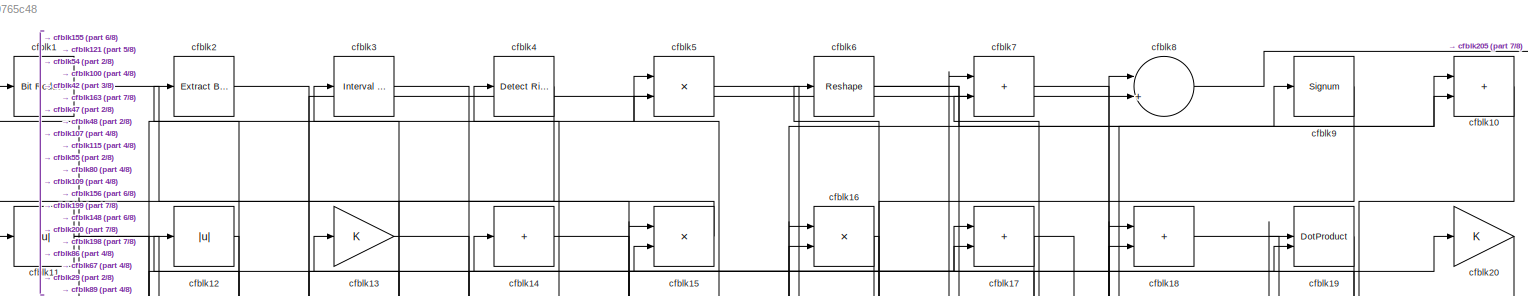
[diagram: root canvas - part 1/8, full width, top band]
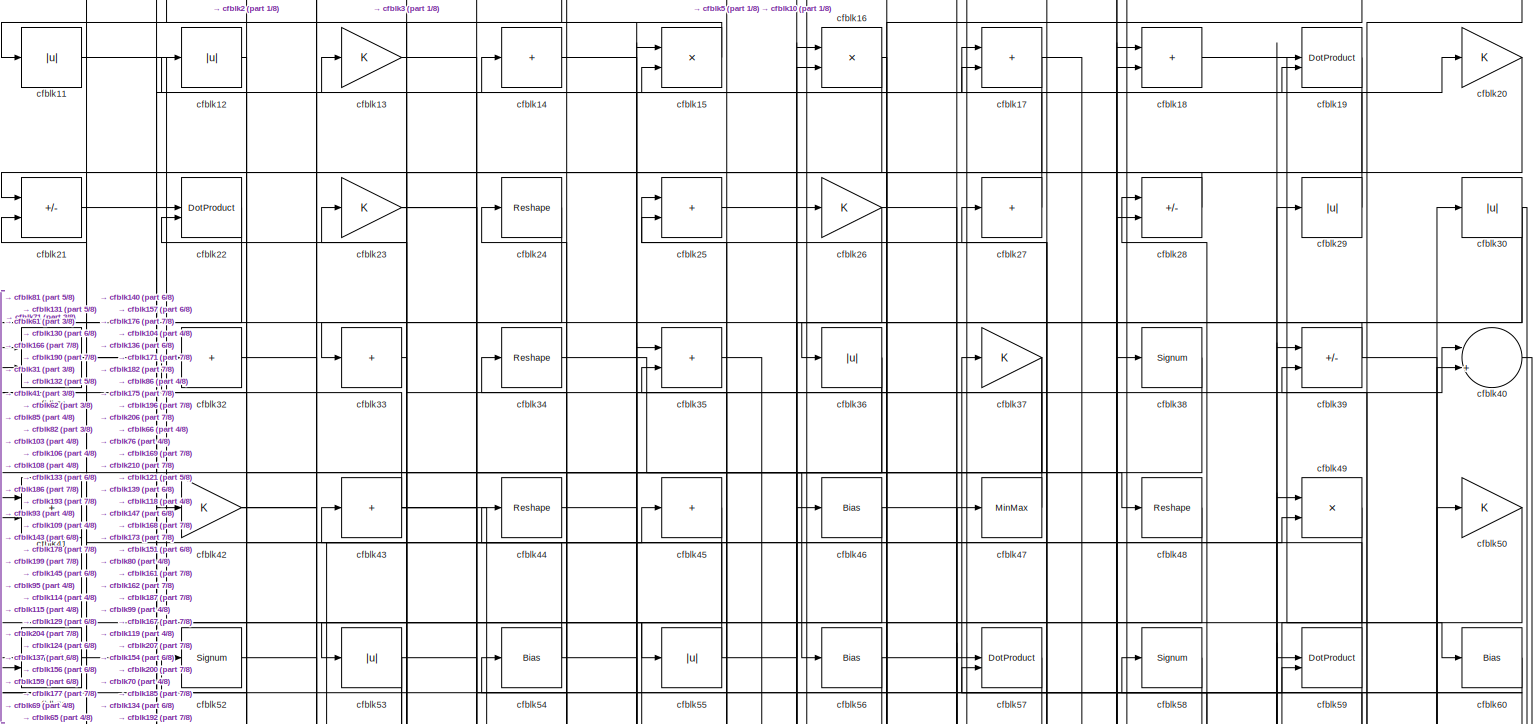
[diagram: root canvas - part 2/8, full width, top band]
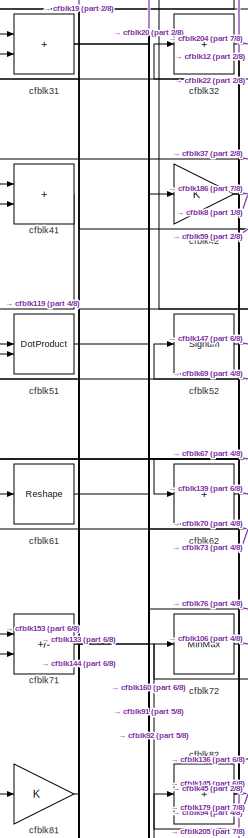
[diagram: root canvas - part 3/8, top left region]
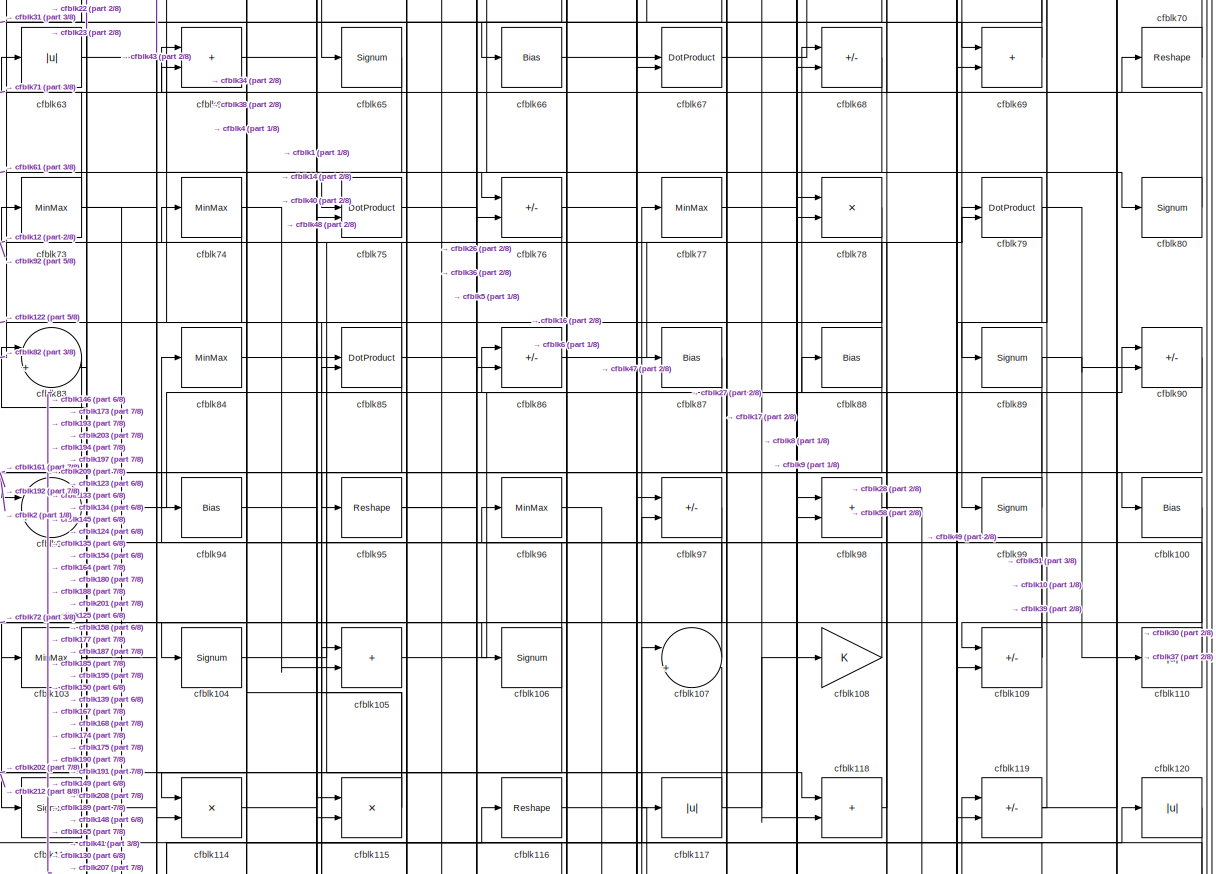
[diagram: root canvas - part 4/8, full width, middle band]
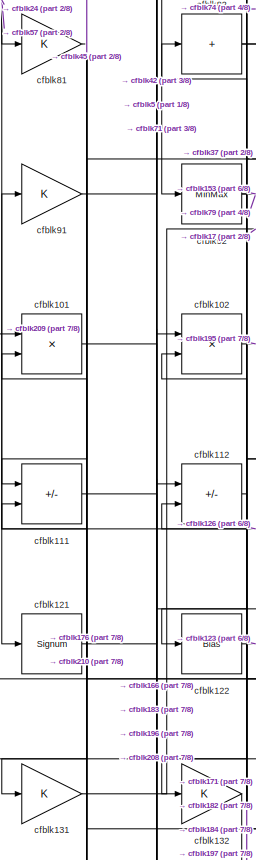
[diagram: root canvas - part 5/8, middle left region]
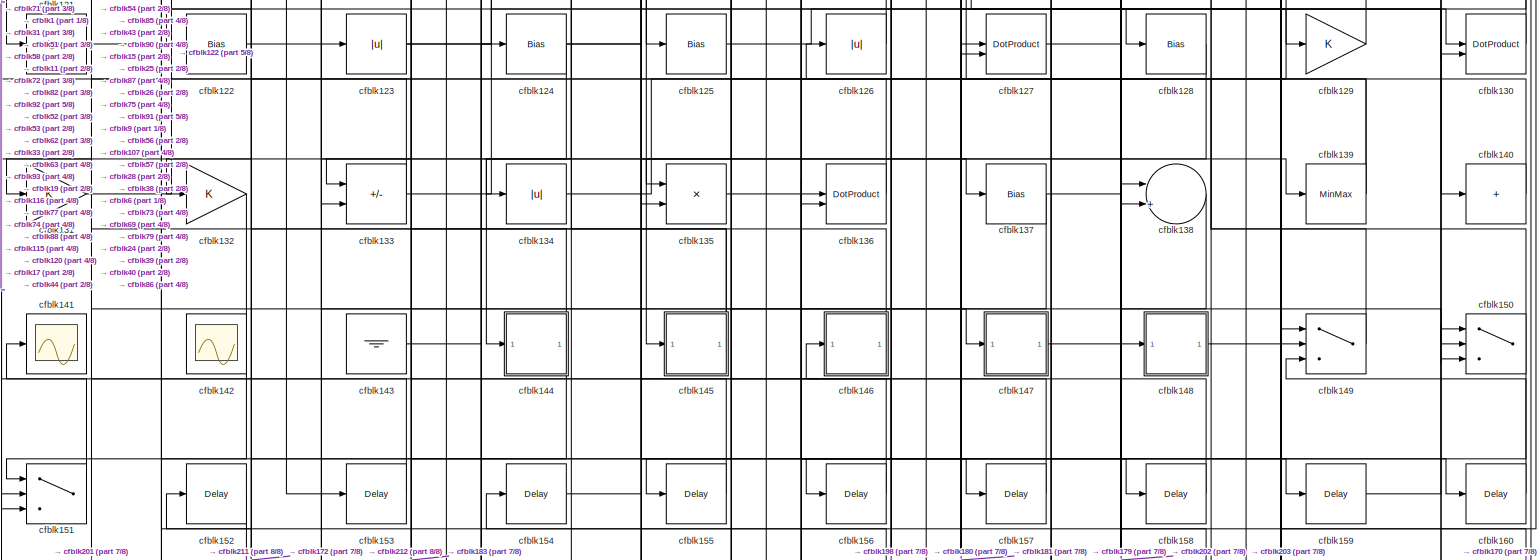
[diagram: root canvas - part 6/8, full width, middle band]
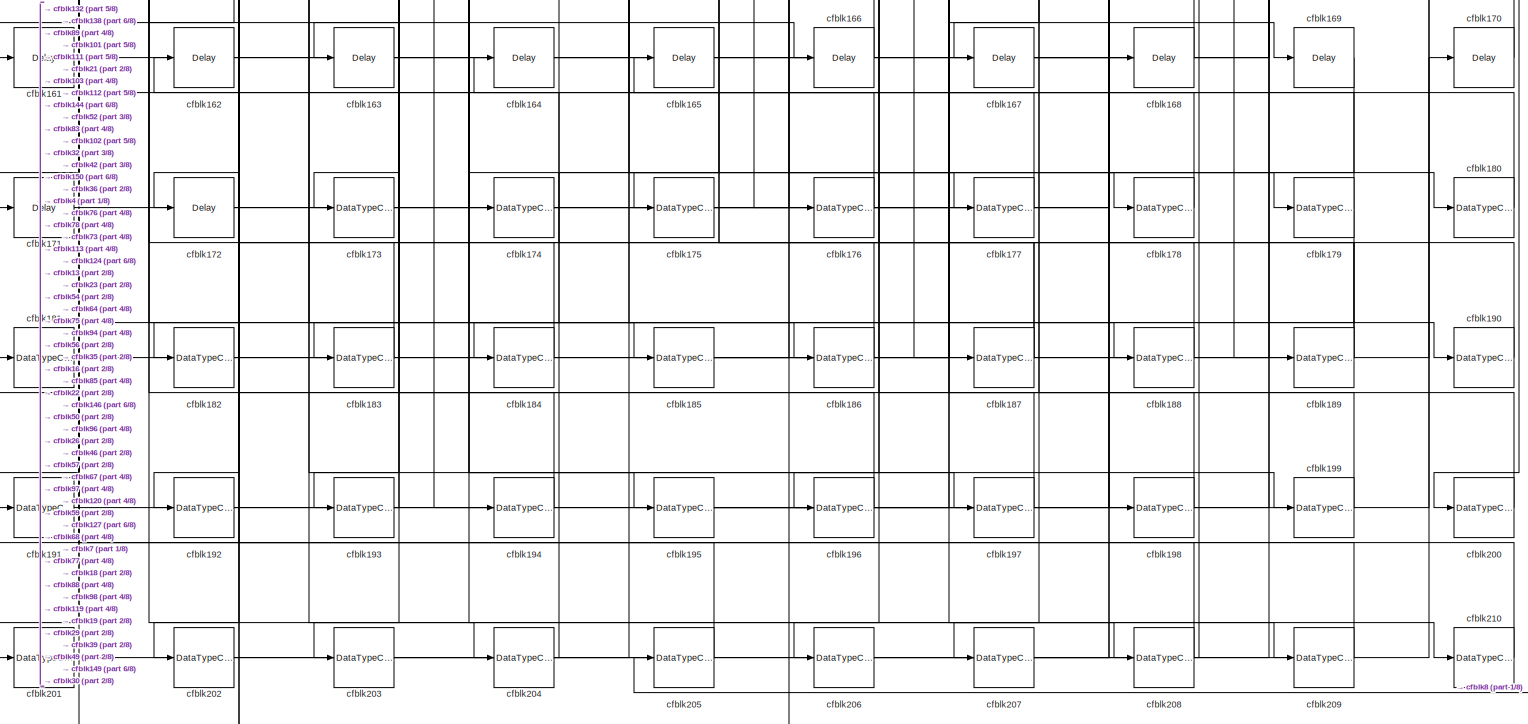
[diagram: root canvas - part 7/8, full width, bottom band]
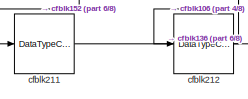
[diagram: root canvas - part 8/8, bottom left region]
MODEL slx_753ba9765c48
KIND model
CONFIG AbsTol = auto
CONFIG EnableMultiTasking = off
CONFIG FixedStep = auto
CONFIG MaxStep = auto
CONFIG MinStep = auto
CONFIG RelTol = 1e-3
CONFIG SampleTimeConstraint = Unconstrained
CONFIG SolverName = VariableStepAuto
CONFIG StartTime = 0.0
CONFIG StopTime = 10.0
BLOCK [Reference] cfblk1  REF=hdlsllib/Logic and Bit
Operations/Bit Reduce
  SourceBlock = hdlsllib/Logic and Bit\nOperations/Bit Reduce
  SourceType = Bit Reduce
BLOCK [Sum] cfblk10
  IconShape = rectangular
BLOCK [Bias] cfblk100
  Bias = 0.0
  SaturateOnIntegerOverflow = off
BLOCK [Product] cfblk101
  Inputs = */
  RndMeth = Zero
  SaturateOnIntegerOverflow = on
BLOCK [Product] cfblk102
  Inputs = */
  RndMeth = Zero
  SaturateOnIntegerOverflow = on
BLOCK [MinMax] cfblk103
BLOCK [Signum] cfblk104
BLOCK [Sum] cfblk105
  IconShape = rectangular
BLOCK [Signum] cfblk106
BLOCK [Sum] cfblk107
  Inputs = |++
BLOCK [Gain] cfblk108
BLOCK [Sum] cfblk109
  IconShape = rectangular
  Inputs = +-
BLOCK [Abs] cfblk11
  SaturateOnIntegerOverflow = off
BLOCK [Abs] cfblk110
  SaturateOnIntegerOverflow = off
BLOCK [Sum] cfblk111
  IconShape = rectangular
  Inputs = +-
BLOCK [Sum] cfblk112
  IconShape = rectangular
  Inputs = +-
BLOCK [Signum] cfblk113
BLOCK [Product] cfblk114
  Inputs = */
  RndMeth = Zero
  SaturateOnIntegerOverflow = on
BLOCK [Product] cfblk115
  Inputs = */
  RndMeth = Zero
  SaturateOnIntegerOverflow = on
BLOCK [Reshape] cfblk116
BLOCK [Abs] cfblk117
  SaturateOnIntegerOverflow = off
BLOCK [Sum] cfblk118
  IconShape = rectangular
BLOCK [Sum] cfblk119
  IconShape = rectangular
  Inputs = +-
BLOCK [Abs] cfblk12
  SaturateOnIntegerOverflow = off
BLOCK [Abs] cfblk120
  SaturateOnIntegerOverflow = off
BLOCK [Signum] cfblk121
BLOCK [Bias] cfblk122
  Bias = 0.0
  SaturateOnIntegerOverflow = off
BLOCK [Abs] cfblk123
  SaturateOnIntegerOverflow = off
BLOCK [Bias] cfblk124
  Bias = 0.0
  SaturateOnIntegerOverflow = off
BLOCK [Bias] cfblk125
  Bias = 0.0
  SaturateOnIntegerOverflow = off
BLOCK [Abs] cfblk126
  SaturateOnIntegerOverflow = off
BLOCK [DotProduct] cfblk127
  OutDataTypeStr = Inherit: Inherit via internal rule
BLOCK [Bias] cfblk128
  Bias = 0.0
  SaturateOnIntegerOverflow = off
BLOCK [Gain] cfblk129
BLOCK [Gain] cfblk13
BLOCK [DotProduct] cfblk130
  OutDataTypeStr = Inherit: Inherit via internal rule
BLOCK [Gain] cfblk131
BLOCK [Gain] cfblk132
BLOCK [Sum] cfblk133
  IconShape = rectangular
  Inputs = +-
BLOCK [Abs] cfblk134
  SaturateOnIntegerOverflow = off
BLOCK [Product] cfblk135
  Inputs = */
  RndMeth = Zero
  SaturateOnIntegerOverflow = on
BLOCK [DotProduct] cfblk136
  OutDataTypeStr = Inherit: Inherit via internal rule
BLOCK [Bias] cfblk137
  Bias = 0.0
  SaturateOnIntegerOverflow = off
BLOCK [Sum] cfblk138
  Inputs = |++
BLOCK [MinMax] cfblk139
BLOCK [Sum] cfblk14
  IconShape = rectangular
  Inputs = +
BLOCK [Sum] cfblk140
  IconShape = rectangular
  Inputs = +
BLOCK [Scope] cfblk141
  Floating = off
  NumInputPorts = 1
  ScopeSpecificationString = Simulink.scopes.TimeScopeBlockCfg('CurrentConfiguration', extmgr.ConfigurationSet(extmgr.Configuration('Core','General UI',true),extmgr.Configuration('Core','Source UI',true),extmgr.Configuration('Sources','WiredSimulink',true,'DataLoggingVariableName','ScopeData2','DataLoggingSaveFormat','Array','DataLoggingLimitDataPoints',true,'DataLoggingDecimation','1'),extmgr.Configuration('Visuals','Time Do...<+868ch>
BLOCK [Scope] cfblk142
  Floating = on
  NumInputPorts = 1
  ScopeSpecificationString = Simulink.scopes.TimeScopeBlockCfg('CurrentConfiguration', extmgr.ConfigurationSet(extmgr.Configuration('Core','General UI',true,'FigureColor',[0.156862745098039 0.156862745098039 0.156862745098039]),extmgr.Configuration('Core','Source UI',true),extmgr.Configuration('Sources','WiredSimulink',true,'DataLoggingVariableName','ScopeData1','DataLoggingSaveFormat','StructureWithTime','DataLoggingLimitDat...<+2713ch>
BLOCK [Ground] cfblk143
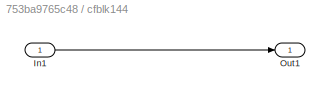
BLOCK [SubSystem] cfblk144
  LibrarySourceBlock = hdlsllib/Ports &\nSubsystems/Subsystem
BLOCK [Inport] cfblk144/In1
BLOCK [Outport] cfblk144/Out1
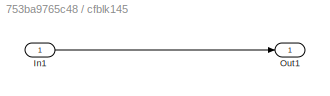
BLOCK [SubSystem] cfblk145
  LibrarySourceBlock = hdlsllib/Ports &\nSubsystems/Subsystem
BLOCK [Inport] cfblk145/In1
BLOCK [Outport] cfblk145/Out1
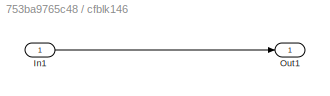
BLOCK [SubSystem] cfblk146
  LibrarySourceBlock = hdlsllib/Ports &\nSubsystems/Subsystem
BLOCK [Inport] cfblk146/In1
BLOCK [Outport] cfblk146/Out1
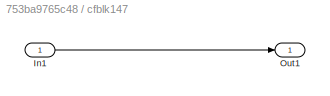
BLOCK [SubSystem] cfblk147
  LibrarySourceBlock = hdlsllib/Ports &\nSubsystems/Subsystem
BLOCK [Inport] cfblk147/In1
BLOCK [Outport] cfblk147/Out1
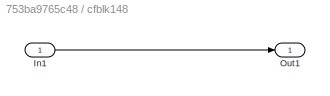
BLOCK [SubSystem] cfblk148
  LibrarySourceBlock = hdlsllib/Ports &\nSubsystems/Subsystem
BLOCK [Inport] cfblk148/In1
BLOCK [Outport] cfblk148/Out1
BLOCK [Switch] cfblk149
  InputSameDT = off
  SaturateOnIntegerOverflow = off
BLOCK [Product] cfblk15
  Inputs = */
  RndMeth = Zero
  SaturateOnIntegerOverflow = on
BLOCK [Switch] cfblk150
  InputSameDT = off
  SaturateOnIntegerOverflow = off
BLOCK [Switch] cfblk151
  InputSameDT = off
  SaturateOnIntegerOverflow = off
BLOCK [Delay] cfblk152
  InputPortMap = u0
  SampleTime = 1
BLOCK [Delay] cfblk153
  InputPortMap = u0
  SampleTime = 1
BLOCK [Delay] cfblk154
  InputPortMap = u0
  SampleTime = 1
BLOCK [Delay] cfblk155
  InputPortMap = u0
  SampleTime = 1
BLOCK [Delay] cfblk156
  InputPortMap = u0
  SampleTime = 1
BLOCK [Delay] cfblk157
  InputPortMap = u0
  SampleTime = 1
BLOCK [Delay] cfblk158
  InputPortMap = u0
  SampleTime = 1
BLOCK [Delay] cfblk159
  InputPortMap = u0
  SampleTime = 1
BLOCK [Product] cfblk16
  Inputs = */
  RndMeth = Zero
  SaturateOnIntegerOverflow = on
BLOCK [Delay] cfblk160
  InputPortMap = u0
  SampleTime = 1
BLOCK [Delay] cfblk161
  InputPortMap = u0
  SampleTime = 1
BLOCK [Delay] cfblk162
  InputPortMap = u0
  SampleTime = 1
BLOCK [Delay] cfblk163
  InputPortMap = u0
  SampleTime = 1
BLOCK [Delay] cfblk164
  InputPortMap = u0
  SampleTime = 1
BLOCK [Delay] cfblk165
  InputPortMap = u0
  SampleTime = 1
BLOCK [Delay] cfblk166
  InputPortMap = u0
  SampleTime = 1
BLOCK [Delay] cfblk167
  InputPortMap = u0
  SampleTime = 1
BLOCK [Delay] cfblk168
  InputPortMap = u0
  SampleTime = 1
BLOCK [Delay] cfblk169
  InputPortMap = u0
  SampleTime = 1
BLOCK [Sum] cfblk17
  IconShape = rectangular
BLOCK [Delay] cfblk170
  InputPortMap = u0
  SampleTime = 1
BLOCK [Delay] cfblk171
  InputPortMap = u0
  SampleTime = 1
BLOCK [Delay] cfblk172
  InputPortMap = u0
  SampleTime = 1
BLOCK [DataTypeConversion] cfblk173
  OutDataTypeStr = uint8
  RndMeth = Floor
  SaturateOnIntegerOverflow = off
BLOCK [DataTypeConversion] cfblk174
  OutDataTypeStr = uint8
  RndMeth = Floor
  SaturateOnIntegerOverflow = off
BLOCK [DataTypeConversion] cfblk175
  OutDataTypeStr = uint8
  RndMeth = Floor
  SaturateOnIntegerOverflow = off
BLOCK [DataTypeConversion] cfblk176
  RndMeth = Floor
  SaturateOnIntegerOverflow = off
BLOCK [DataTypeConversion] cfblk177
  OutDataTypeStr = uint8
  RndMeth = Floor
  SaturateOnIntegerOverflow = off
BLOCK [DataTypeConversion] cfblk178
  OutDataTypeStr = uint8
  RndMeth = Floor
  SaturateOnIntegerOverflow = off
BLOCK [DataTypeConversion] cfblk179
  RndMeth = Floor
  SaturateOnIntegerOverflow = off
BLOCK [Sum] cfblk18
  IconShape = rectangular
BLOCK [DataTypeConversion] cfblk180
  OutDataTypeStr = uint8
  RndMeth = Floor
  SaturateOnIntegerOverflow = off
BLOCK [DataTypeConversion] cfblk181
  OutDataTypeStr = uint8
  RndMeth = Floor
  SaturateOnIntegerOverflow = off
BLOCK [DataTypeConversion] cfblk182
  OutDataTypeStr = uint8
  RndMeth = Floor
  SaturateOnIntegerOverflow = off
BLOCK [DataTypeConversion] cfblk183
  OutDataTypeStr = uint8
  RndMeth = Floor
  SaturateOnIntegerOverflow = off
BLOCK [DataTypeConversion] cfblk184
  OutDataTypeStr = uint8
  RndMeth = Floor
  SaturateOnIntegerOverflow = off
BLOCK [DataTypeConversion] cfblk185
  RndMeth = Floor
  SaturateOnIntegerOverflow = off
BLOCK [DataTypeConversion] cfblk186
  OutDataTypeStr = uint8
  RndMeth = Floor
  SaturateOnIntegerOverflow = off
BLOCK [DataTypeConversion] cfblk187
  RndMeth = Floor
  SaturateOnIntegerOverflow = off
BLOCK [DataTypeConversion] cfblk188
  OutDataTypeStr = uint8
  RndMeth = Floor
  SaturateOnIntegerOverflow = off
BLOCK [DataTypeConversion] cfblk189
  RndMeth = Floor
  SaturateOnIntegerOverflow = off
BLOCK [DotProduct] cfblk19
  OutDataTypeStr = Inherit: Inherit via internal rule
BLOCK [DataTypeConversion] cfblk190
  OutDataTypeStr = uint8
  RndMeth = Floor
  SaturateOnIntegerOverflow = off
BLOCK [DataTypeConversion] cfblk191
  OutDataTypeStr = uint8
  RndMeth = Floor
  SaturateOnIntegerOverflow = off
BLOCK [DataTypeConversion] cfblk192
  OutDataTypeStr = uint8
  RndMeth = Floor
  SaturateOnIntegerOverflow = off
BLOCK [DataTypeConversion] cfblk193
  OutDataTypeStr = uint8
  RndMeth = Floor
  SaturateOnIntegerOverflow = off
BLOCK [DataTypeConversion] cfblk194
  OutDataTypeStr = uint8
  RndMeth = Floor
  SaturateOnIntegerOverflow = off
BLOCK [DataTypeConversion] cfblk195
  RndMeth = Floor
  SaturateOnIntegerOverflow = off
BLOCK [DataTypeConversion] cfblk196
  OutDataTypeStr = uint8
  RndMeth = Floor
  SaturateOnIntegerOverflow = off
BLOCK [DataTypeConversion] cfblk197
  OutDataTypeStr = uint8
  RndMeth = Floor
  SaturateOnIntegerOverflow = off
BLOCK [DataTypeConversion] cfblk198
  OutDataTypeStr = uint8
  RndMeth = Floor
  SaturateOnIntegerOverflow = off
BLOCK [DataTypeConversion] cfblk199
  OutDataTypeStr = uint8
  RndMeth = Floor
  SaturateOnIntegerOverflow = off
BLOCK [Reference] cfblk2  REF=simulink/Logic and Bit
Operations/Extract Bits
  LibrarySourceBlock = hdlsllib/Logic and Bit\nOperations/Extract Bits
  SourceBlock = simulink/Logic and Bit\nOperations/Extract Bits
  SourceType = Extract Bits
BLOCK [Gain] cfblk20
BLOCK [DataTypeConversion] cfblk200
  OutDataTypeStr = uint8
  RndMeth = Floor
  SaturateOnIntegerOverflow = off
BLOCK [DataTypeConversion] cfblk201
  OutDataTypeStr = uint8
  RndMeth = Floor
  SaturateOnIntegerOverflow = off
BLOCK [DataTypeConversion] cfblk202
  OutDataTypeStr = uint8
  RndMeth = Floor
  SaturateOnIntegerOverflow = off
BLOCK [DataTypeConversion] cfblk203
  OutDataTypeStr = uint8
  RndMeth = Floor
  SaturateOnIntegerOverflow = off
BLOCK [DataTypeConversion] cfblk204
  OutDataTypeStr = uint8
  RndMeth = Floor
  SaturateOnIntegerOverflow = off
BLOCK [DataTypeConversion] cfblk205
  OutDataTypeStr = uint8
  RndMeth = Floor
  SaturateOnIntegerOverflow = off
BLOCK [DataTypeConversion] cfblk206
  OutDataTypeStr = uint8
  RndMeth = Floor
  SaturateOnIntegerOverflow = off
BLOCK [DataTypeConversion] cfblk207
  OutDataTypeStr = uint8
  RndMeth = Floor
  SaturateOnIntegerOverflow = off
BLOCK [DataTypeConversion] cfblk208
  RndMeth = Floor
  SaturateOnIntegerOverflow = off
BLOCK [DataTypeConversion] cfblk209
  OutDataTypeStr = uint8
  RndMeth = Floor
  SaturateOnIntegerOverflow = off
BLOCK [Sum] cfblk21
  IconShape = rectangular
  Inputs = +-
BLOCK [DataTypeConversion] cfblk210
  OutDataTypeStr = uint8
  RndMeth = Floor
  SaturateOnIntegerOverflow = off
BLOCK [DataTypeConversion] cfblk211
  OutDataTypeStr = uint8
  RndMeth = Floor
  SaturateOnIntegerOverflow = off
BLOCK [DataTypeConversion] cfblk212
  OutDataTypeStr = uint8
  RndMeth = Floor
  SaturateOnIntegerOverflow = off
BLOCK [DotProduct] cfblk22
  OutDataTypeStr = Inherit: Inherit via internal rule
BLOCK [Gain] cfblk23
BLOCK [Reshape] cfblk24
BLOCK [Sum] cfblk25
  IconShape = rectangular
BLOCK [Gain] cfblk26
BLOCK [Sum] cfblk27
  IconShape = rectangular
  Inputs = +
BLOCK [Sum] cfblk28
  IconShape = rectangular
  Inputs = +-
BLOCK [Abs] cfblk29
  SaturateOnIntegerOverflow = off
BLOCK [Reference] cfblk3  REF=hdlsllib/Logic and Bit
Operations/Interval Test
  SourceBlock = hdlsllib/Logic and Bit\nOperations/Interval Test
  SourceType = Interval Test
BLOCK [Abs] cfblk30
  SaturateOnIntegerOverflow = off
BLOCK [Sum] cfblk31
  IconShape = rectangular
BLOCK [Sum] cfblk32
  IconShape = rectangular
  Inputs = +
BLOCK [Sum] cfblk33
  IconShape = rectangular
  Inputs = +
BLOCK [Reshape] cfblk34
BLOCK [Sum] cfblk35
  IconShape = rectangular
BLOCK [Abs] cfblk36
  SaturateOnIntegerOverflow = off
BLOCK [Gain] cfblk37
BLOCK [Signum] cfblk38
BLOCK [Sum] cfblk39
  IconShape = rectangular
  Inputs = +-
BLOCK [Reference] cfblk4  REF=hdlsllib/Logic and Bit
Operations/Detect Rise
Nonnegative
  SourceBlock = hdlsllib/Logic and Bit\nOperations/Detect Rise\nNonnegative
  SourceType = Detect Rise Nonnegative
BLOCK [Sum] cfblk40
  Inputs = |++
BLOCK [Sum] cfblk41
  IconShape = rectangular
BLOCK [Gain] cfblk42
BLOCK [Sum] cfblk43
  IconShape = rectangular
  Inputs = +
BLOCK [Reshape] cfblk44
BLOCK [Sum] cfblk45
  IconShape = rectangular
  Inputs = +
BLOCK [Bias] cfblk46
  Bias = 0.0
  SaturateOnIntegerOverflow = off
BLOCK [MinMax] cfblk47
BLOCK [Reshape] cfblk48
BLOCK [Product] cfblk49
  Inputs = */
  RndMeth = Zero
  SaturateOnIntegerOverflow = on
BLOCK [Product] cfblk5
  Inputs = */
  RndMeth = Zero
  SaturateOnIntegerOverflow = on
BLOCK [Gain] cfblk50
BLOCK [DotProduct] cfblk51
  OutDataTypeStr = Inherit: Inherit via internal rule
BLOCK [Signum] cfblk52
BLOCK [Abs] cfblk53
  SaturateOnIntegerOverflow = off
BLOCK [Bias] cfblk54
  Bias = 0.0
  SaturateOnIntegerOverflow = off
BLOCK [Abs] cfblk55
  SaturateOnIntegerOverflow = off
BLOCK [Bias] cfblk56
  Bias = 0.0
  SaturateOnIntegerOverflow = off
BLOCK [DotProduct] cfblk57
  OutDataTypeStr = Inherit: Inherit via internal rule
BLOCK [Signum] cfblk58
BLOCK [DotProduct] cfblk59
  OutDataTypeStr = Inherit: Inherit via internal rule
BLOCK [Reshape] cfblk6
BLOCK [Bias] cfblk60
  Bias = 0.0
  SaturateOnIntegerOverflow = off
BLOCK [Reshape] cfblk61
BLOCK [Sum] cfblk62
  IconShape = rectangular
  Inputs = +
BLOCK [Abs] cfblk63
  SaturateOnIntegerOverflow = off
BLOCK [Sum] cfblk64
  IconShape = rectangular
BLOCK [Signum] cfblk65
BLOCK [Bias] cfblk66
  Bias = 0.0
  SaturateOnIntegerOverflow = off
BLOCK [DotProduct] cfblk67
  OutDataTypeStr = Inherit: Inherit via internal rule
BLOCK [Sum] cfblk68
  IconShape = rectangular
  Inputs = +-
BLOCK [Sum] cfblk69
  IconShape = rectangular
BLOCK [Sum] cfblk7
  IconShape = rectangular
BLOCK [Reshape] cfblk70
BLOCK [Sum] cfblk71
  IconShape = rectangular
  Inputs = +-
BLOCK [MinMax] cfblk72
BLOCK [MinMax] cfblk73
BLOCK [MinMax] cfblk74
BLOCK [DotProduct] cfblk75
  OutDataTypeStr = Inherit: Inherit via internal rule
BLOCK [Sum] cfblk76
  IconShape = rectangular
  Inputs = +-
BLOCK [MinMax] cfblk77
BLOCK [Product] cfblk78
  Inputs = */
  RndMeth = Zero
  SaturateOnIntegerOverflow = on
BLOCK [DotProduct] cfblk79
  OutDataTypeStr = Inherit: Inherit via internal rule
BLOCK [Sum] cfblk8
  Inputs = |++
BLOCK [Signum] cfblk80
BLOCK [Gain] cfblk81
BLOCK [Sum] cfblk82
  IconShape = rectangular
  Inputs = +
BLOCK [Sum] cfblk83
  Inputs = |++
BLOCK [MinMax] cfblk84
BLOCK [DotProduct] cfblk85
  OutDataTypeStr = Inherit: Inherit via internal rule
BLOCK [Sum] cfblk86
  IconShape = rectangular
  Inputs = +-
BLOCK [Bias] cfblk87
  Bias = 0.0
  SaturateOnIntegerOverflow = off
BLOCK [Bias] cfblk88
  Bias = 0.0
  SaturateOnIntegerOverflow = off
BLOCK [Signum] cfblk89
BLOCK [Signum] cfblk9
BLOCK [Sum] cfblk90
  IconShape = rectangular
  Inputs = +-
BLOCK [Gain] cfblk91
BLOCK [MinMax] cfblk92
BLOCK [Sum] cfblk93
  Inputs = |++
BLOCK [Bias] cfblk94
  Bias = 0.0
  SaturateOnIntegerOverflow = off
BLOCK [Reshape] cfblk95
BLOCK [MinMax] cfblk96
BLOCK [Sum] cfblk97
  IconShape = rectangular
  Inputs = +-
BLOCK [Sum] cfblk98
  IconShape = rectangular
BLOCK [Signum] cfblk99
LINE cfblk100:1 -> cfblk109:1
LINE cfblk101:1 -> cfblk208:1
LINE cfblk102:1 -> cfblk195:1
NET cfblk103:1 -> cfblk117:1, cfblk202:1, cfblk43:1
LINE cfblk104:1 -> cfblk26:1
LINE cfblk105:1 -> cfblk90:1
NET cfblk106:1 -> cfblk212:1, cfblk22:2
LINE cfblk107:1 -> cfblk4:1
LINE cfblk108:1 -> cfblk23:1
NET cfblk109:1 -> cfblk64:2, cfblk6:1
LINE cfblk10:1 -> cfblk89:1
LINE cfblk110:1 -> cfblk84:1
LINE cfblk111:1 -> cfblk166:1
LINE cfblk112:1 -> cfblk182:1
LINE cfblk113:1 -> cfblk209:1
LINE cfblk114:1 -> cfblk40:1
NET cfblk115:1 -> cfblk105:1, cfblk34:1
LINE cfblk116:1 -> cfblk150:2
NET cfblk117:1 -> cfblk107:2, cfblk108:1
LINE cfblk118:1 -> cfblk58:1
NET cfblk119:1 -> cfblk39:2, cfblk40:2
NET cfblk11:1 -> cfblk130:2, cfblk55:1
LINE cfblk120:1 -> cfblk207:1
LINE cfblk121:1 -> cfblk5:2
LINE cfblk122:1 -> cfblk123:1
NET cfblk123:1 -> cfblk116:1, cfblk130:1
NET cfblk124:1 -> cfblk120:1, cfblk144:1, cfblk17:2
LINE cfblk125:1 -> cfblk128:1
LINE cfblk126:1 -> cfblk91:1
LINE cfblk127:1 -> cfblk179:1
LINE cfblk128:1 -> cfblk151:2
LINE cfblk129:1 -> cfblk24:1
LINE cfblk12:1 -> cfblk62:1
LINE cfblk130:1 -> cfblk86:1
LINE cfblk131:1 -> cfblk17:1
LINE cfblk132:1 -> cfblk171:1
NET cfblk133:1 -> cfblk51:2, cfblk77:1
LINE cfblk134:1 -> cfblk28:2
LINE cfblk135:1 -> cfblk157:1
LINE cfblk136:1 -> cfblk72:1
NET cfblk137:1 -> cfblk150:3, cfblk155:1
LINE cfblk138:1 -> cfblk201:1
NET cfblk139:1 -> cfblk107:1, cfblk57:2
LINE cfblk13:1 -> cfblk185:1
LINE cfblk140:1 -> cfblk15:2
LINE cfblk143:1 -> cfblk19:2
LINE cfblk144/In1:1 -> cfblk144/Out1:1
NET cfblk144:1 -> cfblk172:1, cfblk31:1
LINE cfblk145/In1:1 -> cfblk145/Out1:1
NET cfblk145:1 -> cfblk74:1, cfblk82:1
LINE cfblk146/In1:1 -> cfblk146/Out1:1
LINE cfblk146:1 -> cfblk63:1
LINE cfblk147/In1:1 -> cfblk147/Out1:1
LINE cfblk147:1 -> cfblk38:1
LINE cfblk148/In1:1 -> cfblk148/Out1:1
LINE cfblk148:1 -> cfblk69:2
LINE cfblk149:1 -> cfblk73:1
LINE cfblk14:1 -> cfblk69:1
NET cfblk150:1 -> cfblk126:1, cfblk183:1
LINE cfblk151:1 -> cfblk141:1
LINE cfblk152:1 -> cfblk211:1
LINE cfblk153:1 -> cfblk71:1
LINE cfblk154:1 -> cfblk115:2
LINE cfblk155:1 -> cfblk1:1
LINE cfblk156:1 -> cfblk15:1
LINE cfblk157:1 -> cfblk25:2
LINE cfblk158:1 -> cfblk93:2
LINE cfblk159:1 -> cfblk150:1
LINE cfblk15:1 -> cfblk11:1
LINE cfblk160:1 -> cfblk149:3
LINE cfblk161:1 -> cfblk39:1
LINE cfblk162:1 -> cfblk59:1
LINE cfblk163:1 -> cfblk174:1
LINE cfblk164:1 -> cfblk85:1
LINE cfblk165:1 -> cfblk119:2
LINE cfblk166:1 -> cfblk22:1
LINE cfblk167:1 -> cfblk68:2
LINE cfblk168:1 -> cfblk18:1
LINE cfblk169:1 -> cfblk184:1
NET cfblk16:1 -> cfblk103:1, cfblk66:1
LINE cfblk170:1 -> cfblk149:1
LINE cfblk171:1 -> cfblk16:2
LINE cfblk172:1 -> cfblk124:1
LINE cfblk173:1 -> cfblk18:2
LINE cfblk174:1 -> cfblk78:1
LINE cfblk175:1 -> cfblk78:2
NET cfblk176:1 -> cfblk111:2, cfblk57:1
LINE cfblk177:1 -> cfblk35:1
LINE cfblk178:1 -> cfblk35:2
NET cfblk179:1 -> cfblk191:1, cfblk52:1
NET cfblk17:1 -> cfblk118:2, cfblk93:1
LINE cfblk180:1 -> cfblk127:1
LINE cfblk181:1 -> cfblk127:2
LINE cfblk182:1 -> cfblk46:1
LINE cfblk183:1 -> cfblk112:1
LINE cfblk184:1 -> cfblk112:2
NET cfblk185:1 -> cfblk30:1, cfblk67:1
LINE cfblk186:1 -> cfblk13:1
NET cfblk187:1 -> cfblk162:1, cfblk49:1, cfblk85:2
LINE cfblk188:1 -> cfblk96:1
NET cfblk189:1 -> cfblk164:1, cfblk165:1
LINE cfblk18:1 -> cfblk60:1
LINE cfblk190:1 -> cfblk98:1
LINE cfblk191:1 -> cfblk98:2
LINE cfblk192:1 -> cfblk19:1
LINE cfblk193:1 -> cfblk83:1
LINE cfblk194:1 -> cfblk83:2
NET cfblk195:1 -> cfblk170:1, cfblk97:1
LINE cfblk196:1 -> cfblk102:1
LINE cfblk197:1 -> cfblk102:2
LINE cfblk198:1 -> cfblk146:1
LINE cfblk199:1 -> cfblk7:1
LINE cfblk19:1 -> cfblk61:1
LINE cfblk1:1 -> cfblk115:1
LINE cfblk200:1 -> cfblk7:2
LINE cfblk201:1 -> cfblk75:2
LINE cfblk202:1 -> cfblk138:1
LINE cfblk203:1 -> cfblk138:2
LINE cfblk204:1 -> cfblk54:1
LINE cfblk205:1 -> cfblk32:1
LINE cfblk206:1 -> cfblk29:1
LINE cfblk207:1 -> cfblk50:1
NET cfblk208:1 -> cfblk181:1, cfblk88:1
LINE cfblk209:1 -> cfblk101:1
LINE cfblk20:1 -> cfblk36:1
LINE cfblk210:1 -> cfblk101:2
LINE cfblk211:1 -> cfblk136:1
LINE cfblk212:1 -> cfblk152:1
LINE cfblk21:1 -> cfblk190:1
LINE cfblk22:1 -> cfblk71:2
NET cfblk23:1 -> cfblk109:2, cfblk178:1, cfblk199:1
LINE cfblk24:1 -> cfblk81:1
LINE cfblk25:1 -> cfblk16:1
NET cfblk26:1 -> cfblk136:2, cfblk210:1
LINE cfblk27:1 -> cfblk14:1
LINE cfblk28:1 -> cfblk21:1
LINE cfblk29:1 -> cfblk5:1
LINE cfblk2:1 -> cfblk100:1
NET cfblk30:1 -> cfblk196:1, cfblk200:1, cfblk76:2
NET cfblk31:1 -> cfblk20:1, cfblk67:2
LINE cfblk32:1 -> cfblk204:1
LINE cfblk33:1 -> cfblk133:1
LINE cfblk34:1 -> cfblk56:1
LINE cfblk35:1 -> cfblk176:1
NET cfblk36:1 -> cfblk193:1, cfblk86:2
NET cfblk37:1 -> cfblk132:1, cfblk41:1
LINE cfblk38:1 -> cfblk114:1
NET cfblk39:1 -> cfblk140:1, cfblk33:1
LINE cfblk3:1 -> cfblk48:1
LINE cfblk40:1 -> cfblk154:1
LINE cfblk41:1 -> cfblk119:1
NET cfblk42:1 -> cfblk186:1, cfblk8:2
NET cfblk43:1 -> cfblk145:1, cfblk21:2, cfblk49:2, cfblk95:1
LINE cfblk44:1 -> cfblk137:1
LINE cfblk45:1 -> cfblk131:1
NET cfblk46:1 -> cfblk169:1, cfblk53:1
LINE cfblk47:1 -> cfblk3:1
LINE cfblk48:1 -> cfblk65:1
LINE cfblk49:1 -> cfblk99:1
LINE cfblk4:1 -> cfblk163:1
LINE cfblk50:1 -> cfblk206:1
LINE cfblk51:1 -> cfblk160:1
LINE cfblk52:1 -> cfblk147:1
NET cfblk53:1 -> cfblk133:2, cfblk151:3, cfblk59:2
NET cfblk54:1 -> cfblk159:1, cfblk2:1
NET cfblk55:1 -> cfblk10:1, cfblk44:1
NET cfblk56:1 -> cfblk129:1, cfblk175:1
LINE cfblk57:1 -> cfblk121:1
LINE cfblk58:1 -> cfblk151:1
NET cfblk59:1 -> cfblk167:1, cfblk31:2
LINE cfblk5:1 -> cfblk80:1
LINE cfblk60:1 -> cfblk25:1
LINE cfblk61:1 -> cfblk76:1
LINE cfblk62:1 -> cfblk139:1
LINE cfblk63:1 -> cfblk75:1
LINE cfblk64:1 -> cfblk188:1
LINE cfblk65:1 -> cfblk114:2
LINE cfblk66:1 -> cfblk47:1
LINE cfblk67:1 -> cfblk9:1
LINE cfblk68:1 -> cfblk104:1
LINE cfblk69:1 -> cfblk51:1
NET cfblk6:1 -> cfblk10:2, cfblk148:1
LINE cfblk70:1 -> cfblk37:1
NET cfblk71:1 -> cfblk70:1, cfblk92:1
LINE cfblk72:1 -> cfblk106:1
NET cfblk73:1 -> cfblk194:1, cfblk197:1, cfblk41:2
NET cfblk74:1 -> cfblk105:2, cfblk122:1
LINE cfblk75:1 -> cfblk158:1
NET cfblk76:1 -> cfblk203:1, cfblk87:1
LINE cfblk77:1 -> cfblk168:1
LINE cfblk78:1 -> cfblk173:1
NET cfblk79:1 -> cfblk149:2, cfblk90:2
LINE cfblk7:1 -> cfblk198:1
LINE cfblk80:1 -> cfblk28:1
LINE cfblk81:1 -> cfblk111:1
NET cfblk82:1 -> cfblk45:1, cfblk94:1
LINE cfblk83:1 -> cfblk192:1
LINE cfblk84:1 -> cfblk118:1
NET cfblk85:1 -> cfblk12:1, cfblk135:2, cfblk177:1
LINE cfblk86:1 -> cfblk8:1
LINE cfblk87:1 -> cfblk135:1
NET cfblk88:1 -> cfblk134:1, cfblk64:1
NET cfblk89:1 -> cfblk110:1, cfblk161:1
LINE cfblk8:1 -> cfblk205:1
LINE cfblk90:1 -> cfblk125:1
LINE cfblk91:1 -> cfblk42:1
NET cfblk92:1 -> cfblk153:1, cfblk79:2
LINE cfblk93:1 -> cfblk68:1
LINE cfblk94:1 -> cfblk180:1
NET cfblk95:1 -> cfblk79:1, cfblk97:2
LINE cfblk96:1 -> cfblk187:1
LINE cfblk97:1 -> cfblk113:1
LINE cfblk98:1 -> cfblk189:1
LINE cfblk99:1 -> cfblk27:1
LINE cfblk9:1 -> cfblk156:1
note: NET lines group one-source signal fan-out (src -> all destinations, sorted); 1:1 wires keep LINE
